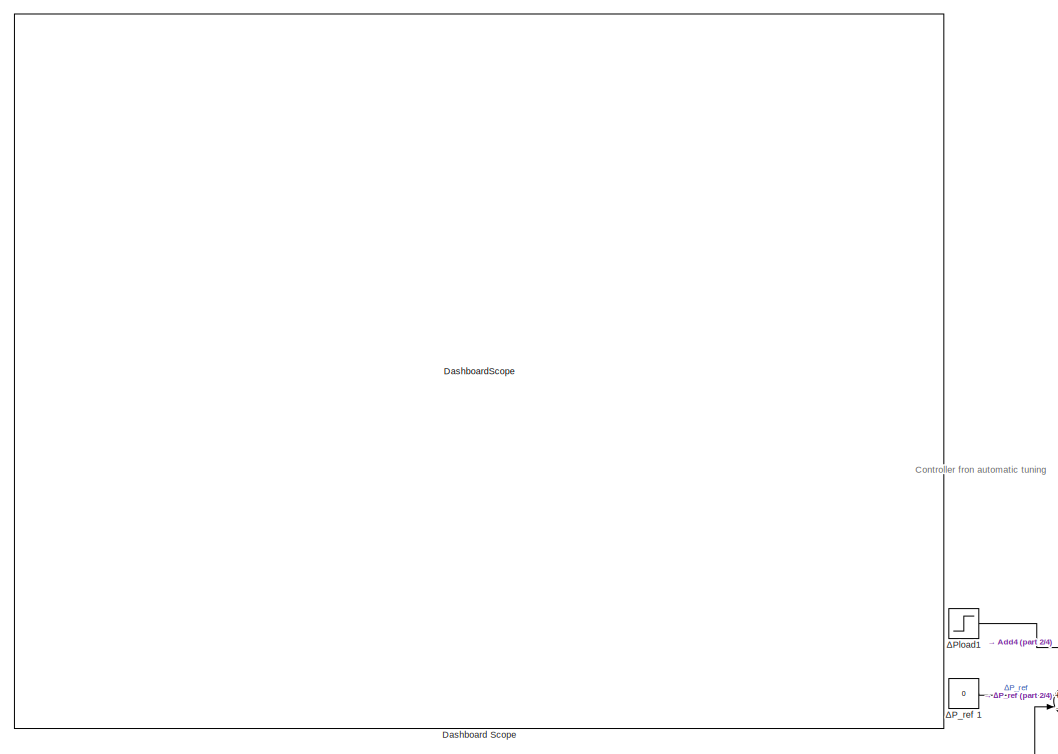
[diagram: root canvas - part 1/4, top left region]
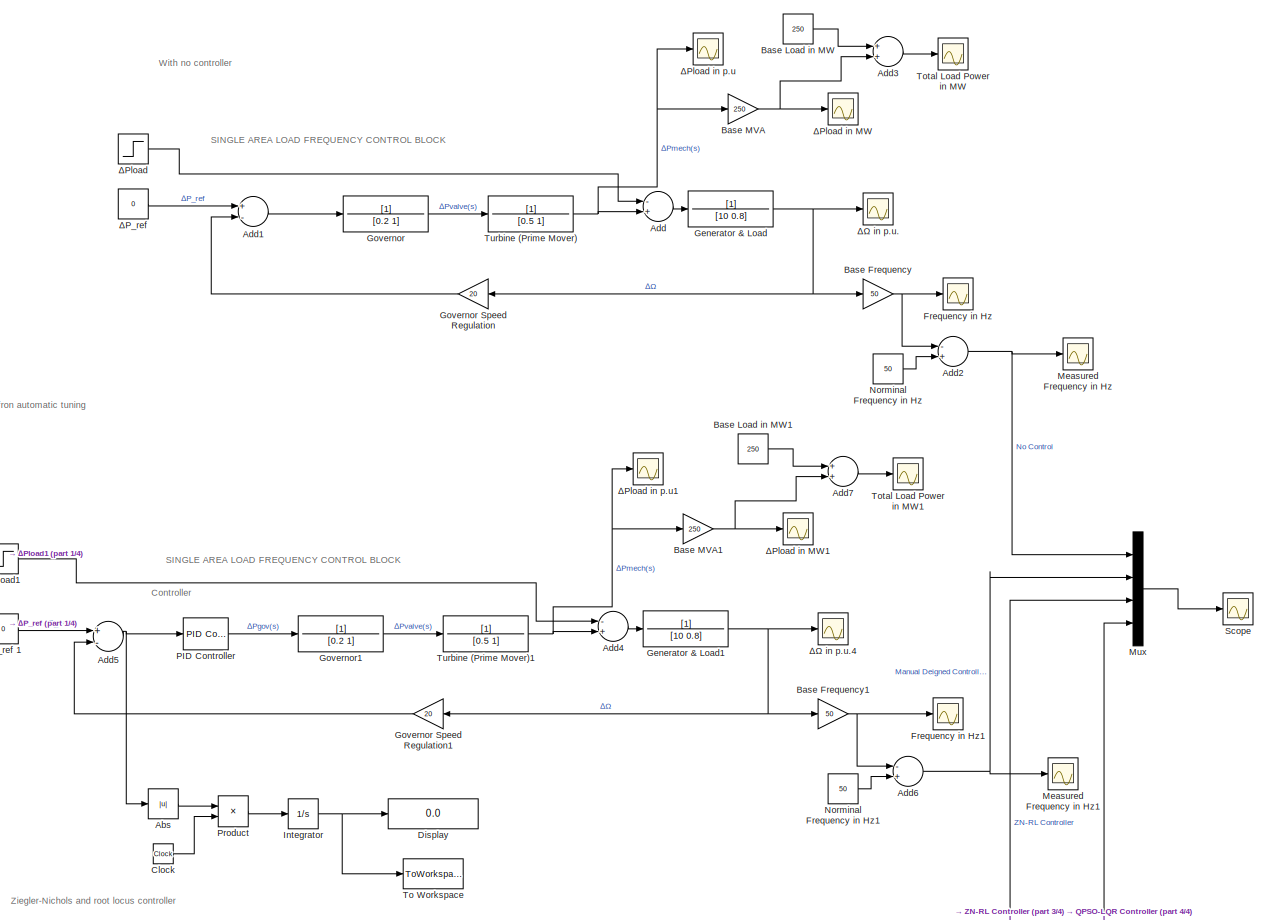
[diagram: root canvas - part 2/4, top right region]
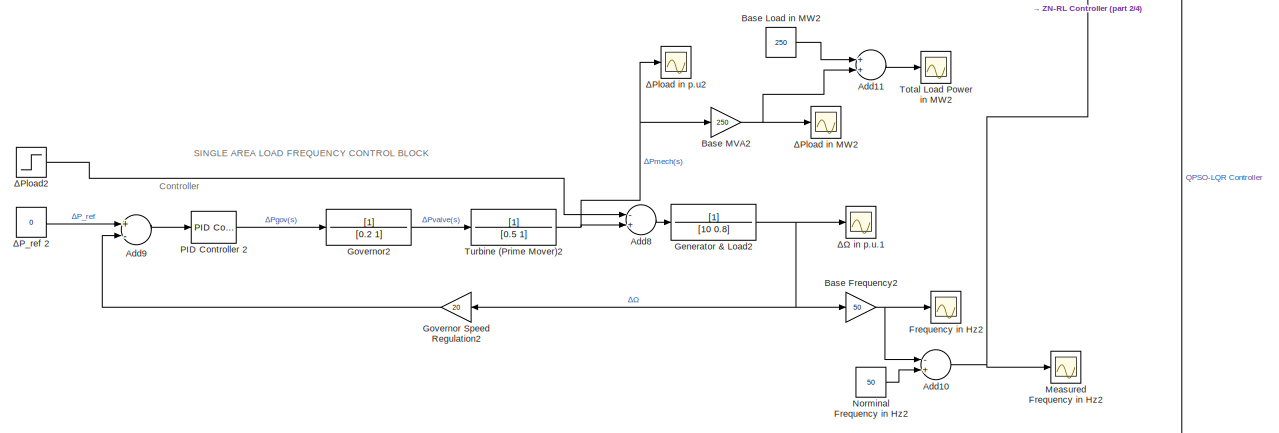
[diagram: root canvas - part 3/4, middle right region]
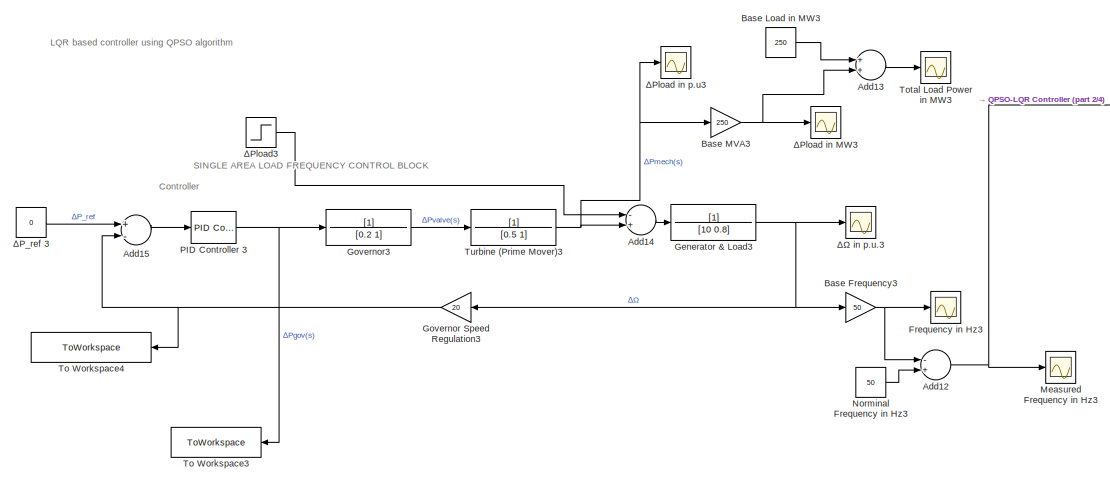
[diagram: root canvas - part 4/4, bottom center region]
MODEL slx_34252d3e8401
KIND model
CONFIG AbsTol = auto
CONFIG EnableMultiTasking = off
CONFIG FixedStep = auto
CONFIG MaxStep = auto
CONFIG MinStep = auto
CONFIG RelTol = 1000000
CONFIG SampleTimeConstraint = Unconstrained
CONFIG Solver = ode23s
CONFIG SolverName = ode23s
CONFIG StartTime = 0.0
CONFIG StopTime = 10
BLOCK [Constant]  Base Load in MW
  Value = 250
BLOCK [Constant]  Base Load in MW1
  Value = 250
BLOCK [Constant]  Base Load in MW2
  Value = 250
BLOCK [Constant]  Base Load in MW3
  Value = 250
BLOCK [Constant]  Norminal Frequency in Hz
  Value = 50
BLOCK [Constant]  Norminal Frequency in Hz1
  Value = 50
BLOCK [Constant]  Norminal Frequency in Hz2
  Value = 50
BLOCK [Constant]  Norminal Frequency in Hz3
  Value = 50
BLOCK [Abs] Abs
  SaturateOnIntegerOverflow = off
BLOCK [Sum] Add
  InputSameDT = off
  Inputs = -+
  OutDataTypeStr = Inherit: Inherit via internal rule
  Ports = [2, 1]
  SaturateOnIntegerOverflow = off
BLOCK [Sum] Add1
  InputSameDT = off
  Inputs = +-
  OutDataTypeStr = Inherit: Inherit via internal rule
  Ports = [2, 1]
  SaturateOnIntegerOverflow = off
BLOCK [Sum] Add10
  InputSameDT = off
  Inputs = -+
  OutDataTypeStr = Inherit: Inherit via internal rule
  Ports = [2, 1]
  SaturateOnIntegerOverflow = off
BLOCK [Sum] Add11
  InputSameDT = off
  OutDataTypeStr = Inherit: Inherit via internal rule
  Ports = [2, 1]
  SaturateOnIntegerOverflow = off
BLOCK [Sum] Add12
  InputSameDT = off
  Inputs = -+
  OutDataTypeStr = Inherit: Inherit via internal rule
  Ports = [2, 1]
  SaturateOnIntegerOverflow = off
BLOCK [Sum] Add13
  InputSameDT = off
  OutDataTypeStr = Inherit: Inherit via internal rule
  Ports = [2, 1]
  SaturateOnIntegerOverflow = off
BLOCK [Sum] Add14
  InputSameDT = off
  Inputs = -+
  OutDataTypeStr = Inherit: Inherit via internal rule
  Ports = [2, 1]
  SaturateOnIntegerOverflow = off
BLOCK [Sum] Add15
  InputSameDT = off
  Inputs = +-
  OutDataTypeStr = Inherit: Inherit via internal rule
  Ports = [2, 1]
  SaturateOnIntegerOverflow = off
BLOCK [Sum] Add2
  InputSameDT = off
  Inputs = -+
  OutDataTypeStr = Inherit: Inherit via internal rule
  Ports = [2, 1]
  SaturateOnIntegerOverflow = off
BLOCK [Sum] Add3
  InputSameDT = off
  OutDataTypeStr = Inherit: Inherit via internal rule
  Ports = [2, 1]
  SaturateOnIntegerOverflow = off
BLOCK [Sum] Add4
  InputSameDT = off
  Inputs = -+
  OutDataTypeStr = Inherit: Inherit via internal rule
  Ports = [2, 1]
  SaturateOnIntegerOverflow = off
BLOCK [Sum] Add5
  InputSameDT = off
  Inputs = +-
  OutDataTypeStr = Inherit: Inherit via internal rule
  Ports = [2, 1]
  SaturateOnIntegerOverflow = off
BLOCK [Sum] Add6
  InputSameDT = off
  Inputs = -+
  OutDataTypeStr = Inherit: Inherit via internal rule
  Ports = [2, 1]
  SaturateOnIntegerOverflow = off
BLOCK [Sum] Add7
  InputSameDT = off
  OutDataTypeStr = Inherit: Inherit via internal rule
  Ports = [2, 1]
  SaturateOnIntegerOverflow = off
BLOCK [Sum] Add8
  InputSameDT = off
  Inputs = -+
  OutDataTypeStr = Inherit: Inherit via internal rule
  Ports = [2, 1]
  SaturateOnIntegerOverflow = off
BLOCK [Sum] Add9
  InputSameDT = off
  Inputs = +-
  OutDataTypeStr = Inherit: Inherit via internal rule
  Ports = [2, 1]
  SaturateOnIntegerOverflow = off
BLOCK [Gain] Base Frequency
  Gain = 50
  OutDataTypeStr = Inherit: Inherit via internal rule
  ParamDataTypeStr = Inherit: Inherit via internal rule
  SaturateOnIntegerOverflow = off
BLOCK [Gain] Base Frequency1
  Gain = 50
  OutDataTypeStr = Inherit: Inherit via internal rule
  ParamDataTypeStr = Inherit: Inherit via internal rule
  SaturateOnIntegerOverflow = off
BLOCK [Gain] Base Frequency2
  Gain = 50
  OutDataTypeStr = Inherit: Inherit via internal rule
  ParamDataTypeStr = Inherit: Inherit via internal rule
  SaturateOnIntegerOverflow = off
BLOCK [Gain] Base Frequency3
  Gain = 50
  OutDataTypeStr = Inherit: Inherit via internal rule
  ParamDataTypeStr = Inherit: Inherit via internal rule
  SaturateOnIntegerOverflow = off
BLOCK [Gain] Base MVA
  Gain = 250
  OutDataTypeStr = Inherit: Inherit via internal rule
  ParamDataTypeStr = Inherit: Inherit via internal rule
  SaturateOnIntegerOverflow = off
BLOCK [Gain] Base MVA1
  Gain = 250
  OutDataTypeStr = Inherit: Inherit via internal rule
  ParamDataTypeStr = Inherit: Inherit via internal rule
  SaturateOnIntegerOverflow = off
BLOCK [Gain] Base MVA2
  Gain = 250
  OutDataTypeStr = Inherit: Inherit via internal rule
  ParamDataTypeStr = Inherit: Inherit via internal rule
  SaturateOnIntegerOverflow = off
BLOCK [Gain] Base MVA3
  Gain = 250
  OutDataTypeStr = Inherit: Inherit via internal rule
  ParamDataTypeStr = Inherit: Inherit via internal rule
  SaturateOnIntegerOverflow = off
BLOCK [Clock] Clock
BLOCK [DashboardScope] Dashboard Scope
BLOCK [Display] Display
  Decimation = 1
  Ports = [1]
BLOCK [Scope] Frequency in Hz
  Floating = off
  NumInputPorts = 1
  Ports = [1]
  ScopeSpecificationString = Simulink.scopes.TimeScopeBlockCfg('CurrentConfiguration', extmgr.ConfigurationSet(extmgr.Configuration('Core','General UI',true),extmgr.Configuration('Core','Source UI',true),extmgr.Configuration('Sources','WiredSimulink',true,'DataLoggingVariableName','ScopeData1'),extmgr.Configuration('Visuals','Time Domain',true,'SerializedDisplays',{struct('MinYLimReal','-0.83663','MaxYLimReal','0.09296','YLab...<+1928ch>
BLOCK [Scope] Frequency in Hz1
  Floating = off
  NumInputPorts = 1
  Ports = [1]
  ScopeSpecificationString = Simulink.scopes.TimeScopeBlockCfg('CurrentConfiguration', extmgr.ConfigurationSet(extmgr.Configuration('Core','General UI',true),extmgr.Configuration('Core','Source UI',true),extmgr.Configuration('Sources','WiredSimulink',true,'DataLoggingVariableName','ScopeData2'),extmgr.Configuration('Visuals','Time Domain',true,'SerializedDisplays',{struct('MinYLimReal','-0.33335','MaxYLimReal','0.03784','YLab...<+1900ch>
BLOCK [Scope] Frequency in Hz2
  Floating = off
  NumInputPorts = 1
  Ports = [1]
  ScopeSpecificationString = Simulink.scopes.TimeScopeBlockCfg('CurrentConfiguration', extmgr.ConfigurationSet(extmgr.Configuration('Core','General UI',true),extmgr.Configuration('Core','Source UI',true),extmgr.Configuration('Sources','WiredSimulink',true,'DataLoggingVariableName','ScopeData5'),extmgr.Configuration('Visuals','Time Domain',true,'SerializedDisplays',{struct('MinYLimReal','-0.41267','MaxYLimReal','0.20324','YLab...<+1958ch>
BLOCK [Scope] Frequency in Hz3
  Floating = off
  NumInputPorts = 1
  Ports = [1]
  ScopeSpecificationString = Simulink.scopes.TimeScopeBlockCfg('CurrentConfiguration', extmgr.ConfigurationSet(extmgr.Configuration('Core','General UI',true),extmgr.Configuration('Core','Source UI',true),extmgr.Configuration('Sources','WiredSimulink',true,'DataLoggingVariableName','ScopeData2'),extmgr.Configuration('Visuals','Time Domain',true,'SerializedDisplays',{struct('MinYLimReal','-0.18374','MaxYLimReal','0.18127','YLab...<+2003ch>
BLOCK [TransferFcn] Generator & Load
  Denominator = [10 0.8]
BLOCK [TransferFcn] Generator & Load1
  Denominator = [10 0.8]
BLOCK [TransferFcn] Generator & Load2
  Denominator = [10 0.8]
BLOCK [TransferFcn] Generator & Load3
  Denominator = [10 0.8]
BLOCK [TransferFcn] Governor
  Denominator = [0.2 1]
BLOCK [Gain] Governor Speed Regulation
  Gain = 20
  OutDataTypeStr = Inherit: Inherit via internal rule
  ParamDataTypeStr = Inherit: Inherit via internal rule
  SaturateOnIntegerOverflow = off
BLOCK [Gain] Governor Speed Regulation1
  Gain = 20
  OutDataTypeStr = Inherit: Inherit via internal rule
  ParamDataTypeStr = Inherit: Inherit via internal rule
  SaturateOnIntegerOverflow = off
BLOCK [Gain] Governor Speed Regulation2
  Gain = 20
  OutDataTypeStr = Inherit: Inherit via internal rule
  ParamDataTypeStr = Inherit: Inherit via internal rule
  SaturateOnIntegerOverflow = off
BLOCK [Gain] Governor Speed Regulation3
  Gain = 20
  OutDataTypeStr = Inherit: Inherit via internal rule
  ParamDataTypeStr = Inherit: Inherit via internal rule
  SaturateOnIntegerOverflow = off
BLOCK [TransferFcn] Governor1
  Denominator = [0.2 1]
BLOCK [TransferFcn] Governor2
  Denominator = [0.2 1]
BLOCK [TransferFcn] Governor3
  Denominator = [0.2 1]
BLOCK [Integrator] Integrator
  Ports = [1, 1]
BLOCK [Scope] Measured Frequency in Hz
  Floating = off
  NumInputPorts = 1
  Ports = [1]
  ScopeSpecificationString = Simulink.scopes.TimeScopeBlockCfg('CurrentConfiguration', extmgr.ConfigurationSet(extmgr.Configuration('Core','General UI',true,'FigureColor',[1 1 1]),extmgr.Configuration('Core','Source UI',true),extmgr.Configuration('Sources','WiredSimulink',true,'DataLoggingVariableName','ScopeData2'),extmgr.Configuration('Visuals','Time Domain',true,'SerializedDisplays',{struct('MinYLimReal','49.90704','MaxYLi...<+2051ch>
BLOCK [Scope] Measured Frequency in Hz1
  Floating = off
  NumInputPorts = 1
  Ports = [1]
  ScopeSpecificationString = Simulink.scopes.TimeScopeBlockCfg('CurrentConfiguration', extmgr.ConfigurationSet(extmgr.Configuration('Core','General UI',true,'FigureColor',[1 1 1]),extmgr.Configuration('Core','Source UI',true),extmgr.Configuration('Sources','WiredSimulink',true,'DataLoggingVariableName','ScopeData3'),extmgr.Configuration('Visuals','Time Domain',true,'SerializedDisplays',{struct('MinYLimReal','49.96216','MaxYLi...<+2346ch>
BLOCK [Scope] Measured Frequency in Hz2
  Floating = off
  NumInputPorts = 1
  Ports = [1]
  ScopeSpecificationString = Simulink.scopes.TimeScopeBlockCfg('CurrentConfiguration', extmgr.ConfigurationSet(extmgr.Configuration('Core','General UI',true,'FigureColor',[1 1 1]),extmgr.Configuration('Core','Source UI',true),extmgr.Configuration('Sources','WiredSimulink',true,'DataLoggingVariableName','ScopeData6'),extmgr.Configuration('Visuals','Time Domain',true,'SerializedDisplays',{struct('MinYLimReal','49.79676','MaxYLi...<+2068ch>
BLOCK [Scope] Measured Frequency in Hz3
  Floating = off
  NumInputPorts = 1
  Ports = [1]
  ScopeSpecificationString = Simulink.scopes.TimeScopeBlockCfg('CurrentConfiguration', extmgr.ConfigurationSet(extmgr.Configuration('Core','General UI',true,'FigureColor',[1 1 1]),extmgr.Configuration('Core','Source UI',true),extmgr.Configuration('Sources','WiredSimulink',true,'DataLoggingVariableName','ScopeData1'),extmgr.Configuration('Visuals','Time Domain',true,'SerializedDisplays',{struct('MinYLimReal','49.8','MaxYLimRea...<+2087ch>
BLOCK [Mux] Mux
  DisplayOption = bar
  Ports = [4, 1]
BLOCK [Reference] PID Controller   REF=simulink/Continuous/PID Controller
  Ports = [1, 1]
  SourceBlock = simulink/Continuous/PID Controller
  SourceProductBaseCode = SL
  SourceProductName = Simulink
  SourceType = PID 1dof
BLOCK [Reference] PID Controller 2  REF=simulink/Continuous/PID Controller
  Ports = [1, 1]
  SourceBlock = simulink/Continuous/PID Controller
  SourceProductBaseCode = SL
  SourceProductName = Simulink
  SourceType = PID 1dof
BLOCK [Reference] PID Controller 3  REF=simulink/Continuous/PID Controller
  Ports = [1, 1]
  SourceBlock = simulink/Continuous/PID Controller
  SourceProductBaseCode = SL
  SourceProductName = Simulink
  SourceType = PID 1dof
BLOCK [Product] Product
  InputSameDT = off
  OutDataTypeStr = Inherit: Inherit via internal rule
  Ports = [2, 1]
  RndMeth = Floor
  SaturateOnIntegerOverflow = off
BLOCK [Scope] Scope
  Floating = off
  NumInputPorts = 1
  Ports = [1]
  ScopeSpecificationString = Simulink.scopes.TimeScopeBlockCfg('CurrentConfiguration', extmgr.ConfigurationSet(extmgr.Configuration('Core','General UI',true),extmgr.Configuration('Core','Source UI',true),extmgr.Configuration('Sources','WiredSimulink',true,'DataLoggingVariableName','ScopeData1'),extmgr.Configuration('Visuals','Time Domain',true,'SerializedDisplays',{struct('MinYLimReal','49.74769','MaxYLimReal','50.85434','YLa...<+2066ch>
BLOCK [ToWorkspace] To Workspace
  FixptAsFi = on
  MaxDataPoints = inf
  Ports = [1]
  SampleTime = -1
  VariableName = ITAE
BLOCK [ToWorkspace] To Workspace3
  FixptAsFi = on
  MaxDataPoints = inf
  Ports = [1]
  SampleTime = -1
  VariableName = CONTROL_INPUT_u
BLOCK [ToWorkspace] To Workspace4
  FixptAsFi = on
  MaxDataPoints = inf
  Ports = [1]
  SampleTime = -1
  VariableName = CONTROL_INPUT_y
BLOCK [Scope] Total Load Power in MW
  Floating = off
  NumInputPorts = 1
  Ports = [1]
  ScopeSpecificationString = Simulink.scopes.TimeScopeBlockCfg('CurrentConfiguration', extmgr.ConfigurationSet(extmgr.Configuration('Core','General UI',true),extmgr.Configuration('Core','Source UI',true),extmgr.Configuration('Sources','WiredSimulink',true,'DataLoggingVariableName','ScopeData5'),extmgr.Configuration('Visuals','Time Domain',true,'SerializedDisplays',{struct('MinYLimReal','241.93119','MaxYLimReal','322.61932','Y...<+1377ch>
BLOCK [Scope] Total Load Power in MW1
  Floating = off
  NumInputPorts = 1
  Ports = [1]
  ScopeSpecificationString = Simulink.scopes.TimeScopeBlockCfg('CurrentConfiguration', extmgr.ConfigurationSet(extmgr.Configuration('Core','General UI',true),extmgr.Configuration('Core','Source UI',true),extmgr.Configuration('Sources','WiredSimulink',true,'DataLoggingVariableName','ScopeData3'),extmgr.Configuration('Visuals','Time Domain',true,'SerializedDisplays',{struct('MinYLimReal','224.79101','MaxYLimReal','381.36569','Y...<+1377ch>
BLOCK [Scope] Total Load Power in MW2
  Floating = off
  NumInputPorts = 1
  Ports = [1]
  ScopeSpecificationString = Simulink.scopes.TimeScopeBlockCfg('CurrentConfiguration', extmgr.ConfigurationSet(extmgr.Configuration('Core','General UI',true),extmgr.Configuration('Core','Source UI',true),extmgr.Configuration('Sources','WiredSimulink',true,'DataLoggingVariableName','ScopeData4'),extmgr.Configuration('Visuals','Time Domain',true,'SerializedDisplays',{struct('MinYLimReal','224.79101','MaxYLimReal','381.36569','Y...<+1377ch>
BLOCK [Scope] Total Load Power in MW3
  Floating = off
  NumInputPorts = 1
  Ports = [1]
  ScopeSpecificationString = Simulink.scopes.TimeScopeBlockCfg('CurrentConfiguration', extmgr.ConfigurationSet(extmgr.Configuration('Core','General UI',true),extmgr.Configuration('Core','Source UI',true),extmgr.Configuration('Sources','WiredSimulink',true,'DataLoggingVariableName','ScopeData3'),extmgr.Configuration('Visuals','Time Domain',true,'SerializedDisplays',{struct('MinYLimReal','224.79101','MaxYLimReal','381.36569','Y...<+1377ch>
BLOCK [TransferFcn] Turbine (Prime Mover)
  Denominator = [0.5 1]
BLOCK [TransferFcn] Turbine (Prime Mover)1
  Denominator = [0.5 1]
BLOCK [TransferFcn] Turbine (Prime Mover)2
  Denominator = [0.5 1]
BLOCK [TransferFcn] Turbine (Prime Mover)3
  Denominator = [0.5 1]
BLOCK [Constant] ∆P_ref 
  Value = 0
BLOCK [Constant] ∆P_ref 1
  Value = 0
BLOCK [Constant] ∆P_ref 2
  Value = 0
BLOCK [Constant] ∆P_ref 3
  Value = 0
BLOCK [Step] ∆Pload
  After = 0.2
  Before = 0.2
  SampleTime = 0
  Time = 100
BLOCK [Scope] ∆Pload in MW
  Floating = off
  NumInputPorts = 1
  Ports = [1]
  ScopeSpecificationString = Simulink.scopes.TimeScopeBlockCfg('CurrentConfiguration', extmgr.ConfigurationSet(extmgr.Configuration('Core','General UI',true),extmgr.Configuration('Core','Source UI',true),extmgr.Configuration('Sources','WiredSimulink',true,'DataLoggingVariableName','ScopeData4'),extmgr.Configuration('Visuals','Time Domain',true,'SerializedDisplays',{struct('MinYLimReal','-8.06881','MaxYLimReal','72.61932','YLa...<+1400ch>
BLOCK [Scope] ∆Pload in MW1
  Floating = off
  NumInputPorts = 1
  Ports = [1]
  ScopeSpecificationString = Simulink.scopes.TimeScopeBlockCfg('CurrentConfiguration', extmgr.ConfigurationSet(extmgr.Configuration('Core','General UI',true),extmgr.Configuration('Core','Source UI',true),extmgr.Configuration('Sources','WiredSimulink',true,'DataLoggingVariableName','ScopeData4'),extmgr.Configuration('Visuals','Time Domain',true,'SerializedDisplays',{struct('MinYLimReal','-7.96629','MaxYLimReal','71.69662','YLa...<+1371ch>
BLOCK [Scope] ∆Pload in MW2
  Floating = off
  NumInputPorts = 1
  Ports = [1]
  ScopeSpecificationString = Simulink.scopes.TimeScopeBlockCfg('CurrentConfiguration', extmgr.ConfigurationSet(extmgr.Configuration('Core','General UI',true),extmgr.Configuration('Core','Source UI',true),extmgr.Configuration('Sources','WiredSimulink',true,'DataLoggingVariableName','ScopeData5'),extmgr.Configuration('Visuals','Time Domain',true,'SerializedDisplays',{struct('MinYLimReal','-7.96629','MaxYLimReal','71.69662','YLa...<+1371ch>
BLOCK [Scope] ∆Pload in MW3
  Floating = off
  NumInputPorts = 1
  Ports = [1]
  ScopeSpecificationString = Simulink.scopes.TimeScopeBlockCfg('CurrentConfiguration', extmgr.ConfigurationSet(extmgr.Configuration('Core','General UI',true),extmgr.Configuration('Core','Source UI',true),extmgr.Configuration('Sources','WiredSimulink',true,'DataLoggingVariableName','ScopeData4'),extmgr.Configuration('Visuals','Time Domain',true,'SerializedDisplays',{struct('MinYLimReal','-7.96629','MaxYLimReal','71.69662','YLa...<+1371ch>
BLOCK [Scope] ∆Pload in p.u
  Floating = off
  NumInputPorts = 1
  Ports = [1]
  ScopeSpecificationString = Simulink.scopes.TimeScopeBlockCfg('CurrentConfiguration', extmgr.ConfigurationSet(extmgr.Configuration('Core','General UI',true),extmgr.Configuration('Core','Source UI',true),extmgr.Configuration('Sources','WiredSimulink',true,'DataLoggingVariableName','ScopeData3'),extmgr.Configuration('Visuals','Time Domain',true),extmgr.Configuration('Tools','Plot Navigation',true),extmgr.Configuration('Tools',...<+40ch>
BLOCK [Scope] ∆Pload in p.u1
  Floating = off
  NumInputPorts = 1
  Ports = [1]
  ScopeSpecificationString = Simulink.scopes.TimeScopeBlockCfg('CurrentConfiguration', extmgr.ConfigurationSet(extmgr.Configuration('Core','General UI',true),extmgr.Configuration('Core','Source UI',true),extmgr.Configuration('Sources','WiredSimulink',true,'DataLoggingVariableName','ScopeData5'),extmgr.Configuration('Visuals','Time Domain',true,'SerializedDisplays',{struct('MinYLimReal','-0.10084','MaxYLimReal','0.52546','YLab...<+1368ch>
BLOCK [Scope] ∆Pload in p.u2
  Floating = off
  NumInputPorts = 1
  Ports = [1]
  ScopeSpecificationString = Simulink.scopes.TimeScopeBlockCfg('CurrentConfiguration', extmgr.ConfigurationSet(extmgr.Configuration('Core','General UI',true),extmgr.Configuration('Core','Source UI',true),extmgr.Configuration('Sources','WiredSimulink',true,'DataLoggingVariableName','ScopeData6'),extmgr.Configuration('Visuals','Time Domain',true,'SerializedDisplays',{struct('MinYLimReal','-0.10084','MaxYLimReal','0.52546','YLab...<+1368ch>
BLOCK [Scope] ∆Pload in p.u3
  Floating = off
  NumInputPorts = 1
  Ports = [1]
  ScopeSpecificationString = Simulink.scopes.TimeScopeBlockCfg('CurrentConfiguration', extmgr.ConfigurationSet(extmgr.Configuration('Core','General UI',true),extmgr.Configuration('Core','Source UI',true),extmgr.Configuration('Sources','WiredSimulink',true,'DataLoggingVariableName','ScopeData5'),extmgr.Configuration('Visuals','Time Domain',true,'SerializedDisplays',{struct('MinYLimReal','-0.10084','MaxYLimReal','0.52546','YLab...<+1368ch>
BLOCK [Step] ∆Pload1
  After = 0.2
  Before = 0.2
  SampleTime = 1
  Time = 100
BLOCK [Step] ∆Pload2
  After = 0.2
  Before = 0.2
  SampleTime = 0
  Time = 100
BLOCK [Step] ∆Pload3
  After = 0.2
  Before = 0.8
  SampleTime = 0
  Time = 100
BLOCK [Scope] ∆Ω in p.u.
  Floating = off
  NumInputPorts = 1
  Ports = [1]
  ScopeSpecificationString = Simulink.scopes.TimeScopeBlockCfg('CurrentConfiguration', extmgr.ConfigurationSet(extmgr.Configuration('Core','General UI',true,'FigureColor',[1 1 1]),extmgr.Configuration('Core','Source UI',true),extmgr.Configuration('Sources','WiredSimulink',true),extmgr.Configuration('Visuals','Time Domain',true,'SerializedDisplays',{struct('MinYLimReal','-0.01678','MaxYLimReal','0.00186','YLabelReal','Change i...<+2223ch>
BLOCK [Scope] ∆Ω in p.u.1
  Floating = off
  NumInputPorts = 1
  Ports = [1]
  ScopeSpecificationString = Simulink.scopes.TimeScopeBlockCfg('CurrentConfiguration', extmgr.ConfigurationSet(extmgr.Configuration('Core','General UI',true,'FigureColor',[1 1 1]),extmgr.Configuration('Core','Source UI',true),extmgr.Configuration('Sources','WiredSimulink',true,'DataLoggingVariableName','ScopeData4'),extmgr.Configuration('Visuals','Time Domain',true,'SerializedDisplays',{struct('MinYLimReal','-0.00823','MaxYLi...<+2262ch>
BLOCK [Scope] ∆Ω in p.u.3
  Floating = off
  NumInputPorts = 1
  Ports = [1]
  ScopeSpecificationString = Simulink.scopes.TimeScopeBlockCfg('CurrentConfiguration', extmgr.ConfigurationSet(extmgr.Configuration('Core','General UI',true,'FigureColor',[1 1 1]),extmgr.Configuration('Core','Source UI',true),extmgr.Configuration('Sources','WiredSimulink',true,'DataLoggingVariableName','ScopeData6'),extmgr.Configuration('Visuals','Time Domain',true,'SerializedDisplays',{struct('MinYLimReal','-0.00233','MaxYLi...<+1945ch>
BLOCK [Scope] ∆Ω in p.u.4
  Floating = off
  NumInputPorts = 1
  Ports = [1]
  ScopeSpecificationString = Simulink.scopes.TimeScopeBlockCfg('CurrentConfiguration', extmgr.ConfigurationSet(extmgr.Configuration('Core','General UI',true,'FigureColor',[1 1 1]),extmgr.Configuration('Core','Source UI',true),extmgr.Configuration('Sources','WiredSimulink',true,'DataLoggingVariableName','ScopeData1'),extmgr.Configuration('Visuals','Time Domain',true,'SerializedDisplays',{struct('MinYLimReal','-0.00667','MaxYLi...<+2262ch>
ANNOTATION (root): LQR based controller using QPSO algorithm
ANNOTATION (root): Ziegler-Nichols and root locus controller
ANNOTATION (root): Controller fron automatic tuning
ANNOTATION (root): With no controller
ANNOTATION (root): Controller
ANNOTATION (root): SINGLE AREA LOAD FREQUENCY CONTROL BLOCK
LINE  Base Load in MW1:1 -> Add7:1
LINE  Base Load in MW2:1 -> Add11:1
LINE  Base Load in MW3:1 -> Add13:1
LINE  Base Load in MW:1 -> Add3:1
LINE  Norminal Frequency in Hz1:1 -> Add6:2
LINE  Norminal Frequency in Hz2:1 -> Add10:2
LINE  Norminal Frequency in Hz3:1 -> Add12:2
LINE  Norminal Frequency in Hz:1 -> Add2:2
LINE Abs:1 -> Product:1
NET Add10:1 -> Measured Frequency in Hz2:1, Mux:3
LINE Add11:1 -> Total Load Power in MW2:1
NET Add12:1 -> Measured Frequency in Hz3:1, Mux:4
LINE Add13:1 -> Total Load Power in MW3:1
LINE Add14:1 -> Generator & Load3:1
LINE Add15:1 -> PID Controller 3:1
LINE Add1:1 -> Governor:1
NET Add2:1 -> Measured Frequency in Hz:1, Mux:1
LINE Add3:1 -> Total Load Power in MW:1
LINE Add4:1 -> Generator & Load1:1
NET Add5:1 -> Abs:1, PID Controller :1
NET Add6:1 -> Measured Frequency in Hz1:1, Mux:2
LINE Add7:1 -> Total Load Power in MW1:1
LINE Add8:1 -> Generator & Load2:1
LINE Add9:1 -> PID Controller 2:1
LINE Add:1 -> Generator & Load:1
NET Base Frequency1:1 -> Add6:1, Frequency in Hz1:1
NET Base Frequency2:1 -> Add10:1, Frequency in Hz2:1
NET Base Frequency3:1 -> Add12:1, Frequency in Hz3:1
NET Base Frequency:1 -> Add2:1, Frequency in Hz:1
NET Base MVA1:1 -> Add7:2, ∆Pload in MW1:1
NET Base MVA2:1 -> Add11:2, ∆Pload in MW2:1
NET Base MVA3:1 -> Add13:2, ∆Pload in MW3:1
NET Base MVA:1 -> Add3:2, ∆Pload in MW:1
LINE Clock:1 -> Product:2
NET Generator & Load1:1 -> Base Frequency1:1, Governor Speed Regulation1:1, ∆Ω in p.u.4:1
NET Generator & Load2:1 -> Base Frequency2:1, Governor Speed Regulation2:1, ∆Ω in p.u.1:1
NET Generator & Load3:1 -> Base Frequency3:1, Governor Speed Regulation3:1, ∆Ω in p.u.3:1
NET Generator & Load:1 -> Base Frequency:1, Governor Speed Regulation:1, ∆Ω in p.u.:1
LINE Governor Speed Regulation1:1 -> Add5:2
LINE Governor Speed Regulation2:1 -> Add9:2
NET Governor Speed Regulation3:1 -> Add15:2, To Workspace4:1
LINE Governor Speed Regulation:1 -> Add1:2
LINE Governor1:1 -> Turbine (Prime Mover)1:1
LINE Governor2:1 -> Turbine (Prime Mover)2:1
LINE Governor3:1 -> Turbine (Prime Mover)3:1
LINE Governor:1 -> Turbine (Prime Mover):1
NET Integrator:1 -> Display:1, To Workspace:1
LINE Mux:1 -> Scope:1
LINE PID Controller 2:1 -> Governor2:1
NET PID Controller 3:1 -> Governor3:1, To Workspace3:1
LINE PID Controller :1 -> Governor1:1
LINE Product:1 -> Integrator:1
NET Turbine (Prime Mover)1:1 -> Add4:2, Base MVA1:1, ∆Pload in p.u1:1
NET Turbine (Prime Mover)2:1 -> Add8:2, Base MVA2:1, ∆Pload in p.u2:1
NET Turbine (Prime Mover)3:1 -> Add14:2, Base MVA3:1, ∆Pload in p.u3:1
NET Turbine (Prime Mover):1 -> Add:2, Base MVA:1, ∆Pload in p.u:1
LINE ∆P_ref 1:1 -> Add5:1
LINE ∆P_ref 2:1 -> Add9:1
LINE ∆P_ref 3:1 -> Add15:1
LINE ∆P_ref :1 -> Add1:1
LINE ∆Pload1:1 -> Add4:1
LINE ∆Pload2:1 -> Add8:1
LINE ∆Pload3:1 -> Add14:1
LINE ∆Pload:1 -> Add:1
note: NET lines group one-source signal fan-out (src -> all destinations, sorted); 1:1 wires keep LINE
